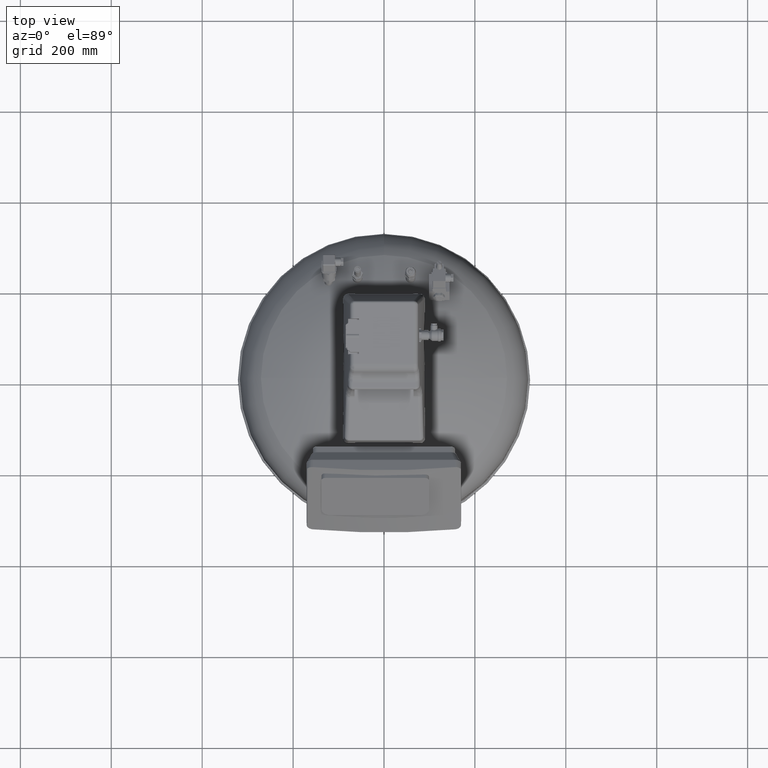
[diagram: clean part render]
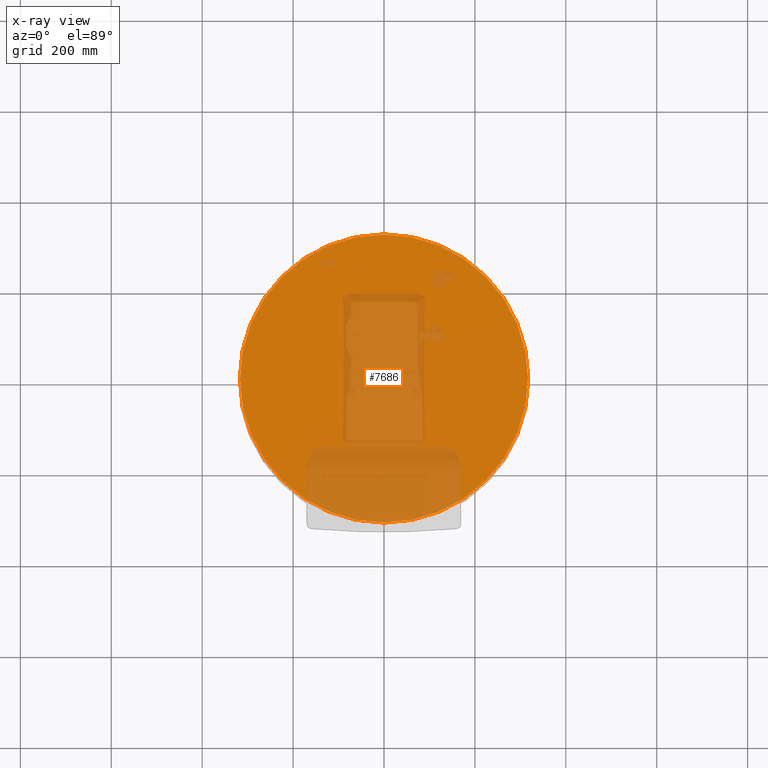
[diagram: x-ray — body ghosted, one internal face saturated and labeled with its STEP entity id]
A machine part, top view, then the same camera in x-ray: the body is ghosted and one INTERNAL B-rep face — a face not visible from any outside direction — is saturated and labeled: STEP entity #7686.
In plain terms, the highlighted planar face has unit normal (0, 0, 1).
Its self-contained STEP definition (entity closure, byte-faithful):
#7643=AXIS2_PLACEMENT_3D('Circle Axis2P3D',#7641,#7642,$) ;
#7667=AXIS2_PLACEMENT_3D('Circle Axis2P3D',#7665,#7666,$) ;
#7680=AXIS2_PLACEMENT_3D('Plane Axis2P3D',#7677,#7678,#7679) ;
#7638=CARTESIAN_POINT('Vertex',(-317.,-7.76426070659E-014,769.000000001)) ;
#7641=CARTESIAN_POINT('Axis2P3D Location',(2.507341E-014,0.,769.000000001)) ;
#7645=CARTESIAN_POINT('Vertex',(317.,3.8821303533E-014,769.000000001)) ;
#7665=CARTESIAN_POINT('Axis2P3D Location',(2.507341E-014,0.,769.)) ;
#7677=CARTESIAN_POINT('Axis2P3D Location',(-158.5,0.,769.)) ;
#7642=DIRECTION('Axis2P3D Direction',(0.,0.,-1.)) ;
#7666=DIRECTION('Axis2P3D Direction',(0.,0.,-1.)) ;
#7678=DIRECTION('Axis2P3D Direction',(0.,0.,1.)) ;
#7679=DIRECTION('Axis2P3D XDirection',(1.,0.,0.)) ;
#7683=ORIENTED_EDGE('',*,*,#7647,.F.) ;
#7684=ORIENTED_EDGE('',*,*,#7669,.F.) ;
#7686=ADVANCED_FACE('2AD',(#7685),#7681,.T.) ;
#7644=CIRCLE('generated circle',#7643,317.) ;
#7668=CIRCLE('generated circle',#7667,317.) ;
#7647=EDGE_CURVE('',#7639,#7646,#7644,.T.) ;
#7669=EDGE_CURVE('',#7646,#7639,#7668,.T.) ;
#7682=EDGE_LOOP('',(#7683,#7684)) ;
#7685=FACE_OUTER_BOUND('',#7682,.T.) ;
#7681=PLANE('Plane',#7680) ;
#7639=VERTEX_POINT('',#7638) ;
#7646=VERTEX_POINT('',#7645) ;